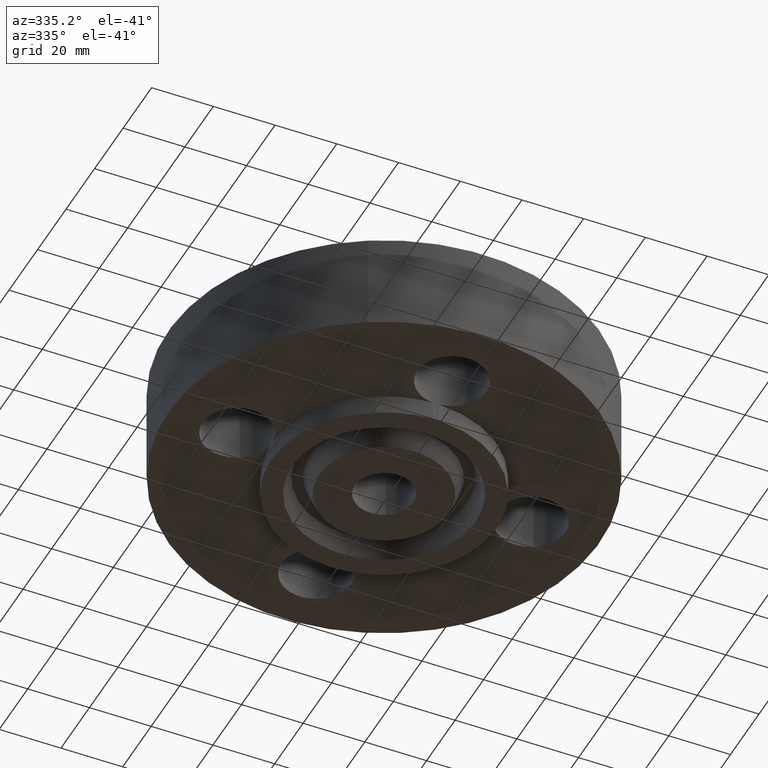
[diagram: clean part render]
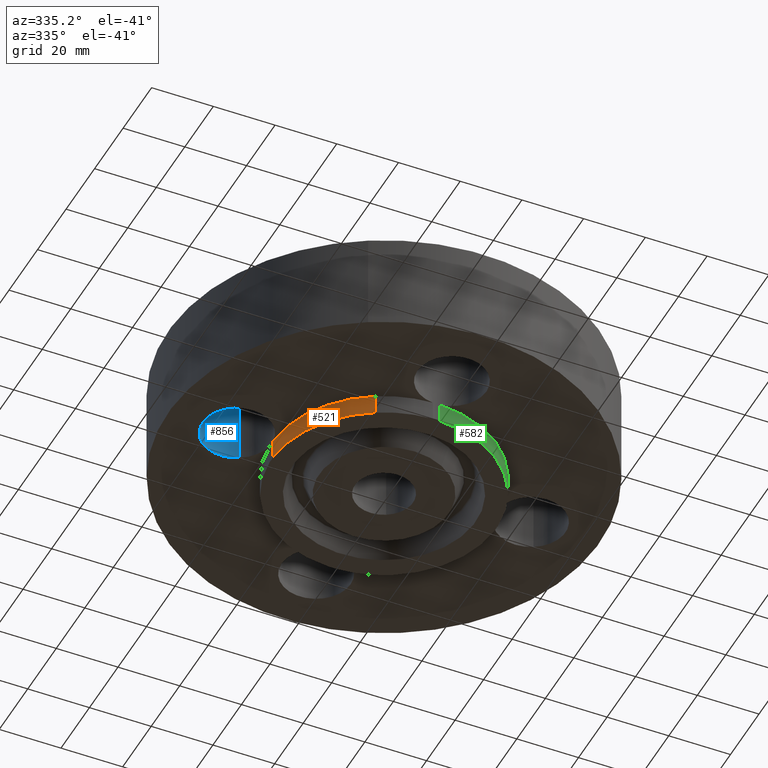
[diagram: same view with three faces highlighted in distinct colors, each labeled with its STEP entity id]
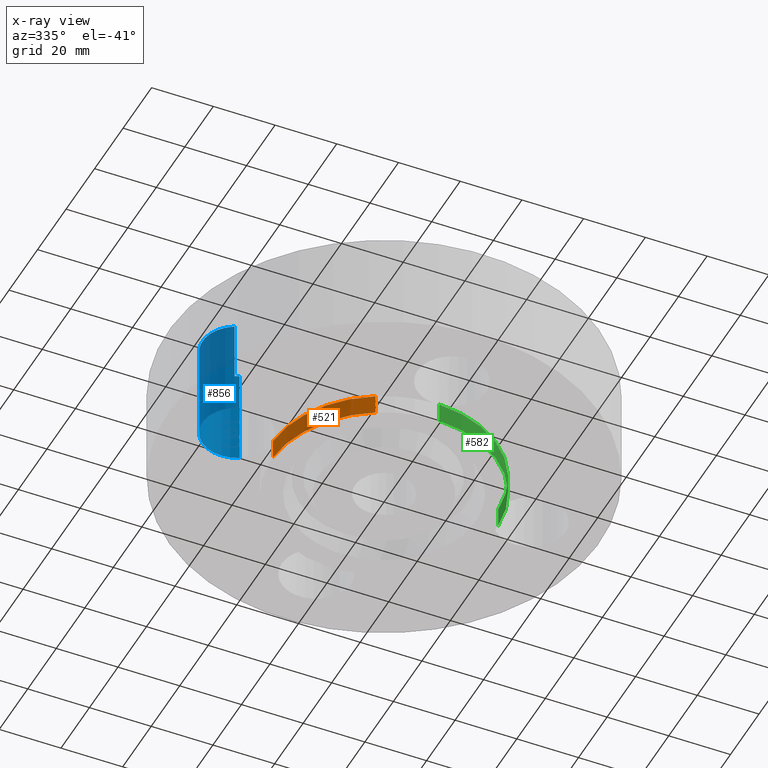
[diagram: x-ray of the same camera — body ghosted, the three highlighted faces saturated]
A machine part, auxiliary view with three faces highlighted in distinct colors.
The next image is the same camera in x-ray (body ghosted, the three faces saturated) — at least one of them is partly hidden behind the body in this view.
Their STEP definitions:

[orange] entity #521 — the highlighted cylindrical surface (partial cylindrical patch) has radius 36.5125 mm, axis along (0, 0, -1).
#127=AXIS2_PLACEMENT_3D('Cylinder Axis2P3D',#124,#125,#126) ;
#489=AXIS2_PLACEMENT_3D('Circle Axis2P3D',#487,#488,$) ;
#505=AXIS2_PLACEMENT_3D('Circle Axis2P3D',#503,#504,$) ;
#124=CARTESIAN_POINT('Axis2P3D Location',(0.,0.,1.43500000001)) ;
#487=CARTESIAN_POINT('Axis2P3D Location',(0.,0.,-0.250000000001)) ;
#491=CARTESIAN_POINT('Vertex',(-0.689174211746,-1.26152493272,-0.250000000001)) ;
#493=CARTESIAN_POINT('Vertex',(-1.43691500001,-0.0410064967415,-0.250000000001)) ;
#496=CARTESIAN_POINT('Line Origine',(-0.689174211746,-1.26152493272,-0.125000000001)) ;
#500=CARTESIAN_POINT('Vertex',(-0.689174211746,-1.26152493272,0.)) ;
#503=CARTESIAN_POINT('Axis2P3D Location',(0.,0.,0.)) ;
#507=CARTESIAN_POINT('Vertex',(-1.43691500001,-0.0410064967415,0.)) ;
#510=CARTESIAN_POINT('Line Origine',(-1.43691500001,-0.0410064967415,-0.125000000001)) ;
#125=DIRECTION('Axis2P3D Direction',(0.,0.,-0.0393700787402)) ;
#126=DIRECTION('Axis2P3D XDirection',(0.0188750212049,0.0345504945626,0.)) ;
#488=DIRECTION('Axis2P3D Direction',(0.,0.,-0.0393700787402)) ;
#497=DIRECTION('Vector Direction',(0.,0.,-0.0393700787402)) ;
#504=DIRECTION('Axis2P3D Direction',(0.,0.,-0.0393700787402)) ;
#511=DIRECTION('Vector Direction',(0.,0.,-0.0393700787402)) ;
#498=VECTOR('Line Direction',#497,0.0393700787402) ;
#512=VECTOR('Line Direction',#511,0.0393700787402) ;
#516=ORIENTED_EDGE('',*,*,#495,.F.) ;
#517=ORIENTED_EDGE('',*,*,#502,.T.) ;
#518=ORIENTED_EDGE('',*,*,#509,.T.) ;
#519=ORIENTED_EDGE('',*,*,#514,.T.) ;
#521=ADVANCED_FACE('PartBody',(#520),#128,.T.) ;
#490=CIRCLE('generated circle',#489,1.43750000001) ;
#506=CIRCLE('generated circle',#505,1.43750000001) ;
#128=CYLINDRICAL_SURFACE('generated cylinder',#127,1.43750000001) ;
#495=EDGE_CURVE('',#492,#494,#490,.T.) ;
#502=EDGE_CURVE('',#492,#501,#499,.F.) ;
#509=EDGE_CURVE('',#501,#508,#506,.T.) ;
#514=EDGE_CURVE('',#508,#494,#513,.T.) ;
#515=EDGE_LOOP('',(#516,#517,#518,#519)) ;
#520=FACE_OUTER_BOUND('',#515,.T.) ;
#499=LINE('Line',#496,#498) ;
#513=LINE('Line',#510,#512) ;
#492=VERTEX_POINT('',#491) ;
#494=VERTEX_POINT('',#493) ;
#501=VERTEX_POINT('',#500) ;
#508=VERTEX_POINT('',#507) ;

[blue] entity #856 — the highlighted cylindrical surface (partial cylindrical patch) has radius 11.176 mm, axis along (0, 0, -1).
#672=AXIS2_PLACEMENT_3D('Circle Axis2P3D',#670,#671,$) ;
#829=AXIS2_PLACEMENT_3D('Cylinder Axis2P3D',#826,#827,#828) ;
#847=AXIS2_PLACEMENT_3D('Circle Axis2P3D',#845,#846,$) ;
#667=CARTESIAN_POINT('Vertex',(-1.66405276302,0.386136327233,0.)) ;
#670=CARTESIAN_POINT('Axis2P3D Location',(-1.87500000001,-2.79741234551E-016,0.)) ;
#674=CARTESIAN_POINT('Vertex',(-2.08594723699,-0.386136327233,0.)) ;
#826=CARTESIAN_POINT('Axis2P3D Location',(-1.87500000001,-3.44431912262E-016,1.24606299213)) ;
#831=CARTESIAN_POINT('Line Origine',(-2.08594723699,-0.386136327233,0.500000000002)) ;
#835=CARTESIAN_POINT('Vertex',(-2.08594723699,-0.386136327233,1.25000000001)) ;
#838=CARTESIAN_POINT('Line Origine',(-1.66405276302,0.386136327233,0.500000000002)) ;
#842=CARTESIAN_POINT('Vertex',(-1.66405276302,0.386136327233,1.25000000001)) ;
#845=CARTESIAN_POINT('Axis2P3D Location',(-1.87500000001,-3.44431912262E-016,1.25000000001)) ;
#671=DIRECTION('Axis2P3D Direction',(0.,0.,-0.0393700787402)) ;
#827=DIRECTION('Axis2P3D Direction',(0.,0.,-0.0393700787402)) ;
#828=DIRECTION('Axis2P3D XDirection',(0.0188750212049,0.0345504945626,0.)) ;
#832=DIRECTION('Vector Direction',(0.,0.,-0.0393700787402)) ;
#839=DIRECTION('Vector Direction',(0.,0.,-0.0393700787402)) ;
#846=DIRECTION('Axis2P3D Direction',(0.,0.,-0.0393700787402)) ;
#833=VECTOR('Line Direction',#832,0.0393700787402) ;
#840=VECTOR('Line Direction',#839,0.0393700787402) ;
#851=ORIENTED_EDGE('',*,*,#837,.F.) ;
#852=ORIENTED_EDGE('',*,*,#676,.T.) ;
#853=ORIENTED_EDGE('',*,*,#844,.T.) ;
#854=ORIENTED_EDGE('',*,*,#849,.F.) ;
#856=ADVANCED_FACE('PartBody',(#855),#830,.F.) ;
#673=CIRCLE('generated circle',#672,0.440000000002) ;
#848=CIRCLE('generated circle',#847,0.440000000002) ;
#830=CYLINDRICAL_SURFACE('generated cylinder',#829,0.440000000002) ;
#676=EDGE_CURVE('',#675,#668,#673,.T.) ;
#837=EDGE_CURVE('',#675,#836,#834,.F.) ;
#844=EDGE_CURVE('',#668,#843,#841,.F.) ;
#849=EDGE_CURVE('',#836,#843,#848,.T.) ;
#850=EDGE_LOOP('',(#851,#852,#853,#854)) ;
#855=FACE_OUTER_BOUND('',#850,.T.) ;
#834=LINE('Line',#831,#833) ;
#841=LINE('Line',#838,#840) ;
#668=VERTEX_POINT('',#667) ;
#675=VERTEX_POINT('',#674) ;
#836=VERTEX_POINT('',#835) ;
#843=VERTEX_POINT('',#842) ;

[green] entity #582 — the highlighted cylindrical surface (partial cylindrical patch) has radius 36.5125 mm, axis along (0, 0, -1).
#127=AXIS2_PLACEMENT_3D('Cylinder Axis2P3D',#124,#125,#126) ;
#550=AXIS2_PLACEMENT_3D('Circle Axis2P3D',#548,#549,$) ;
#566=AXIS2_PLACEMENT_3D('Circle Axis2P3D',#564,#565,$) ;
#124=CARTESIAN_POINT('Axis2P3D Location',(0.,0.,1.43500000001)) ;
#548=CARTESIAN_POINT('Axis2P3D Location',(0.,0.,-0.250000000001)) ;
#552=CARTESIAN_POINT('Vertex',(1.43691500001,-0.0410064967415,-0.250000000001)) ;
#554=CARTESIAN_POINT('Vertex',(0.0410064967415,-1.43691500001,-0.250000000001)) ;
#557=CARTESIAN_POINT('Line Origine',(1.43691500001,-0.0410064967415,-0.125000000001)) ;
#561=CARTESIAN_POINT('Vertex',(1.43691500001,-0.0410064967415,0.)) ;
#564=CARTESIAN_POINT('Axis2P3D Location',(0.,0.,0.)) ;
#568=CARTESIAN_POINT('Vertex',(0.0410064967415,-1.43691500001,0.)) ;
#571=CARTESIAN_POINT('Line Origine',(0.0410064967415,-1.43691500001,-0.125000000001)) ;
#125=DIRECTION('Axis2P3D Direction',(0.,0.,-0.0393700787402)) ;
#126=DIRECTION('Axis2P3D XDirection',(0.0188750212049,0.0345504945626,0.)) ;
#549=DIRECTION('Axis2P3D Direction',(0.,0.,-0.0393700787402)) ;
#558=DIRECTION('Vector Direction',(0.,0.,-0.0393700787402)) ;
#565=DIRECTION('Axis2P3D Direction',(0.,0.,-0.0393700787402)) ;
#572=DIRECTION('Vector Direction',(0.,0.,-0.0393700787402)) ;
#559=VECTOR('Line Direction',#558,0.0393700787402) ;
#573=VECTOR('Line Direction',#572,0.0393700787402) ;
#577=ORIENTED_EDGE('',*,*,#556,.F.) ;
#578=ORIENTED_EDGE('',*,*,#563,.F.) ;
#579=ORIENTED_EDGE('',*,*,#570,.T.) ;
#580=ORIENTED_EDGE('',*,*,#575,.T.) ;
#582=ADVANCED_FACE('PartBody',(#581),#128,.T.) ;
#551=CIRCLE('generated circle',#550,1.43750000001) ;
#567=CIRCLE('generated circle',#566,1.43750000001) ;
#128=CYLINDRICAL_SURFACE('generated cylinder',#127,1.43750000001) ;
#556=EDGE_CURVE('',#553,#555,#551,.T.) ;
#563=EDGE_CURVE('',#562,#553,#560,.T.) ;
#570=EDGE_CURVE('',#562,#569,#567,.T.) ;
#575=EDGE_CURVE('',#569,#555,#574,.T.) ;
#576=EDGE_LOOP('',(#577,#578,#579,#580)) ;
#581=FACE_OUTER_BOUND('',#576,.T.) ;
#560=LINE('Line',#557,#559) ;
#574=LINE('Line',#571,#573) ;
#553=VERTEX_POINT('',#552) ;
#555=VERTEX_POINT('',#554) ;
#562=VERTEX_POINT('',#561) ;
#569=VERTEX_POINT('',#568) ;